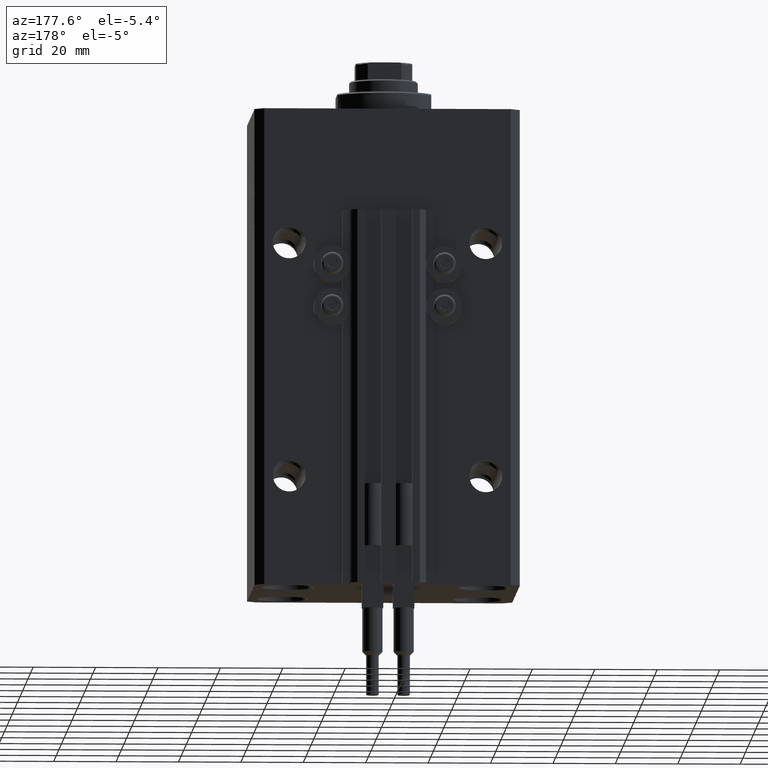
[diagram: clean part render]
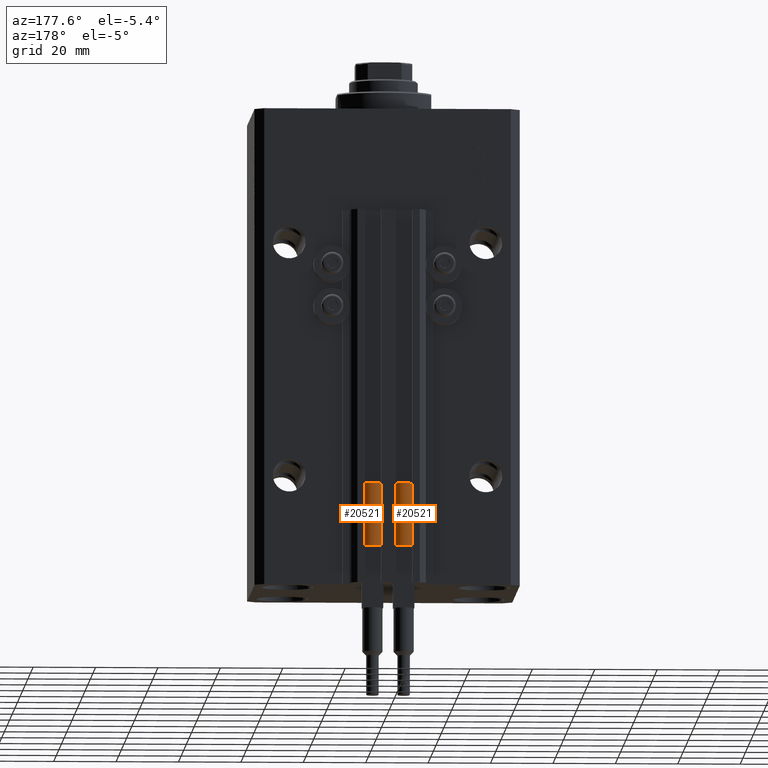
[diagram: same view with one multi-face feature highlighted, each face labeled with its STEP entity id]
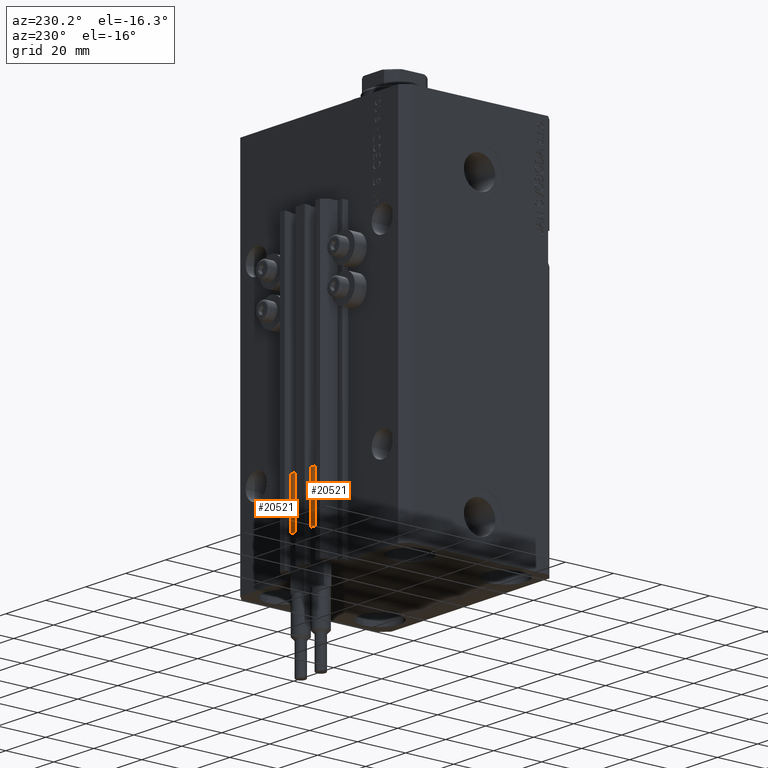
[diagram: same view with one multi-face feature highlighted, each face labeled with its STEP entity id]
A machine part, auxiliary view. The highlighted faces form ONE feature: a constant-radius fillet chain: 2 tangent blend faces with common blend radius 3.4 mm. The faces share edges in the B-rep.
A second angle (auxiliary view) of the same feature is appended — it is thin or edge-on in the first view.
Their STEP definitions:
[1] entity #20521 (Cylinder):
#8 = CARTESIAN_POINT ( 'NONE',  ( 0.000000000000000000, 0.000000000000000000, 20.00000000000000000 ) ) ;
#667 = CARTESIAN_POINT ( 'NONE',  ( 3.051229260478471428, 1.500000000000000000, 20.00000000000000000 ) ) ;
#1175 = CARTESIAN_POINT ( 'NONE',  ( 3.400000000000000355, 0.000000000000000000, 20.00000000000000000 ) ) ;
#1595 = DIRECTION ( 'NONE',  ( 1.000000000000000000, 0.000000000000000000, 0.000000000000000000 ) ) ;
#1793 = DIRECTION ( 'NONE',  ( 1.000000000000000000, 0.000000000000000000, 0.000000000000000000 ) ) ;
#1832 = VERTEX_POINT ( 'NONE', #3157 ) ;
#3157 = CARTESIAN_POINT ( 'NONE',  ( -3.051229260478471428, 1.500000000000000000, 20.00000000000000000 ) ) ;
#4691 = DIRECTION ( 'NONE',  ( 1.000000000000000000, 0.000000000000000000, 0.000000000000000000 ) ) ;
#5464 = DIRECTION ( 'NONE',  ( -0.000000000000000000, -0.000000000000000000, -1.000000000000000000 ) ) ;
#5550 = DIRECTION ( 'NONE',  ( 0.000000000000000000, 0.000000000000000000, 1.000000000000000000 ) ) ;
#6082 = VERTEX_POINT ( 'NONE', #667 ) ;
#6570 = EDGE_CURVE ( 'NONE', #6082, #1832, #45328, .T. ) ;
#9253 = EDGE_CURVE ( 'NONE', #24578, #30669, #28136, .T. ) ;
#11089 = CARTESIAN_POINT ( 'NONE',  ( 3.400000000000000355, 4.163799117101001052E-16, 0.000000000000000000 ) ) ;
#11307 = AXIS2_PLACEMENT_3D ( 'NONE', #35313, #16485, #46220 ) ;
#11602 = VERTEX_POINT ( 'NONE', #1175 ) ;
#12045 = ORIENTED_EDGE ( 'NONE', *, *, #6570, .F. ) ;
#12158 = EDGE_CURVE ( 'NONE', #1832, #24578, #16451, .T. ) ;
#15061 = DIRECTION ( 'NONE',  ( -1.000000000000000000, 0.000000000000000000, 0.000000000000000000 ) ) ;
#15388 = CIRCLE ( 'NONE', #34387, 3.400000000000000355 ) ;
#16207 = ORIENTED_EDGE ( 'NONE', *, *, #26424, .T. ) ;
#16451 = CIRCLE ( 'NONE', #26770, 3.400000000000000355 ) ;
#16485 = DIRECTION ( 'NONE',  ( 0.000000000000000000, 0.000000000000000000, 1.000000000000000000 ) ) ;
#16993 = DIRECTION ( 'NONE',  ( 0.000000000000000000, 0.000000000000000000, 1.000000000000000000 ) ) ;
#19016 = ORIENTED_EDGE ( 'NONE', *, *, #9253, .F. ) ;
#20521 = ADVANCED_FACE ( 'NONE', ( #45262 ), #33901, .T. ) ;
#21629 = AXIS2_PLACEMENT_3D ( 'NONE', #46724, #16993, #4691 ) ;
#21878 = CARTESIAN_POINT ( 'NONE',  ( -3.400000000000000355, 0.000000000000000000, 0.000000000000000000 ) ) ;
#24334 = CARTESIAN_POINT ( 'NONE',  ( 0.000000000000000000, 0.000000000000000000, 20.00000000000000000 ) ) ;
#24578 = VERTEX_POINT ( 'NONE', #32075 ) ;
#25031 = CARTESIAN_POINT ( 'NONE',  ( 0.000000000000000000, 0.000000000000000000, 20.00000000000000000 ) ) ;
#25449 = ORIENTED_EDGE ( 'NONE', *, *, #12158, .F. ) ;
#26424 = EDGE_CURVE ( 'NONE', #30481, #30669, #27906, .T. ) ;
#26770 = AXIS2_PLACEMENT_3D ( 'NONE', #25031, #43092, #1793 ) ;
#27696 = AXIS2_PLACEMENT_3D ( 'NONE', #8, #30173, #15061 ) ;
#27890 = EDGE_LOOP ( 'NONE', ( #31399, #46308, #16207, #19016, #25449, #12045 ) ) ;
#27906 = CIRCLE ( 'NONE', #11307, 3.400000000000000355 ) ;
#28136 = LINE ( 'NONE', #43231, #36815 ) ;
#28212 = LINE ( 'NONE', #39346, #43156 ) ;
#29782 = EDGE_CURVE ( 'NONE', #11602, #6082, #15388, .T. ) ;
#30173 = DIRECTION ( 'NONE',  ( -0.000000000000000000, -0.000000000000000000, -1.000000000000000000 ) ) ;
#30481 = VERTEX_POINT ( 'NONE', #11089 ) ;
#30669 = VERTEX_POINT ( 'NONE', #21878 ) ;
#31399 = ORIENTED_EDGE ( 'NONE', *, *, #29782, .F. ) ;
#32075 = CARTESIAN_POINT ( 'NONE',  ( -3.399999999999999467, -4.915049848600952119E-16, 20.00000000000000000 ) ) ;
#33901 = CYLINDRICAL_SURFACE ( 'NONE', #27696, 3.400000000000000355 ) ;
#34387 = AXIS2_PLACEMENT_3D ( 'NONE', #24334, #5550, #1595 ) ;
#35313 = CARTESIAN_POINT ( 'NONE',  ( 0.000000000000000000, 0.000000000000000000, 0.000000000000000000 ) ) ;
#36815 = VECTOR ( 'NONE', #37039, 1000.000000000000000 ) ;
#37039 = DIRECTION ( 'NONE',  ( -0.000000000000000000, -0.000000000000000000, -1.000000000000000000 ) ) ;
#39346 = CARTESIAN_POINT ( 'NONE',  ( 3.400000000000000355, 4.163799117101001052E-16, 20.00000000000000000 ) ) ;
#43092 = DIRECTION ( 'NONE',  ( 0.000000000000000000, 0.000000000000000000, 1.000000000000000000 ) ) ;
#43156 = VECTOR ( 'NONE', #5464, 1000.000000000000000 ) ;
#43231 = CARTESIAN_POINT ( 'NONE',  ( -3.400000000000000355, 0.000000000000000000, 20.00000000000000000 ) ) ;
#45262 = FACE_OUTER_BOUND ( 'NONE', #27890, .T. ) ;
#45328 = CIRCLE ( 'NONE', #21629, 3.400000000000000355 ) ;
#46220 = DIRECTION ( 'NONE',  ( 1.000000000000000000, 0.000000000000000000, 0.000000000000000000 ) ) ;
#46308 = ORIENTED_EDGE ( 'NONE', *, *, #46424, .T. ) ;
#46424 = EDGE_CURVE ( 'NONE', #11602, #30481, #28212, .T. ) ;
#46724 = CARTESIAN_POINT ( 'NONE',  ( 0.000000000000000000, 0.000000000000000000, 20.00000000000000000 ) ) ;
[2] entity #20521 (Cylinder):
#8 = CARTESIAN_POINT ( 'NONE',  ( 0.000000000000000000, 0.000000000000000000, 20.00000000000000000 ) ) ;
#667 = CARTESIAN_POINT ( 'NONE',  ( 3.051229260478471428, 1.500000000000000000, 20.00000000000000000 ) ) ;
#1175 = CARTESIAN_POINT ( 'NONE',  ( 3.400000000000000355, 0.000000000000000000, 20.00000000000000000 ) ) ;
#1595 = DIRECTION ( 'NONE',  ( 1.000000000000000000, 0.000000000000000000, 0.000000000000000000 ) ) ;
#1793 = DIRECTION ( 'NONE',  ( 1.000000000000000000, 0.000000000000000000, 0.000000000000000000 ) ) ;
#1832 = VERTEX_POINT ( 'NONE', #3157 ) ;
#3157 = CARTESIAN_POINT ( 'NONE',  ( -3.051229260478471428, 1.500000000000000000, 20.00000000000000000 ) ) ;
#4691 = DIRECTION ( 'NONE',  ( 1.000000000000000000, 0.000000000000000000, 0.000000000000000000 ) ) ;
#5464 = DIRECTION ( 'NONE',  ( -0.000000000000000000, -0.000000000000000000, -1.000000000000000000 ) ) ;
#5550 = DIRECTION ( 'NONE',  ( 0.000000000000000000, 0.000000000000000000, 1.000000000000000000 ) ) ;
#6082 = VERTEX_POINT ( 'NONE', #667 ) ;
#6570 = EDGE_CURVE ( 'NONE', #6082, #1832, #45328, .T. ) ;
#9253 = EDGE_CURVE ( 'NONE', #24578, #30669, #28136, .T. ) ;
#11089 = CARTESIAN_POINT ( 'NONE',  ( 3.400000000000000355, 4.163799117101001052E-16, 0.000000000000000000 ) ) ;
#11307 = AXIS2_PLACEMENT_3D ( 'NONE', #35313, #16485, #46220 ) ;
#11602 = VERTEX_POINT ( 'NONE', #1175 ) ;
#12045 = ORIENTED_EDGE ( 'NONE', *, *, #6570, .F. ) ;
#12158 = EDGE_CURVE ( 'NONE', #1832, #24578, #16451, .T. ) ;
#15061 = DIRECTION ( 'NONE',  ( -1.000000000000000000, 0.000000000000000000, 0.000000000000000000 ) ) ;
#15388 = CIRCLE ( 'NONE', #34387, 3.400000000000000355 ) ;
#16207 = ORIENTED_EDGE ( 'NONE', *, *, #26424, .T. ) ;
#16451 = CIRCLE ( 'NONE', #26770, 3.400000000000000355 ) ;
#16485 = DIRECTION ( 'NONE',  ( 0.000000000000000000, 0.000000000000000000, 1.000000000000000000 ) ) ;
#16993 = DIRECTION ( 'NONE',  ( 0.000000000000000000, 0.000000000000000000, 1.000000000000000000 ) ) ;
#19016 = ORIENTED_EDGE ( 'NONE', *, *, #9253, .F. ) ;
#20521 = ADVANCED_FACE ( 'NONE', ( #45262 ), #33901, .T. ) ;
#21629 = AXIS2_PLACEMENT_3D ( 'NONE', #46724, #16993, #4691 ) ;
#21878 = CARTESIAN_POINT ( 'NONE',  ( -3.400000000000000355, 0.000000000000000000, 0.000000000000000000 ) ) ;
#24334 = CARTESIAN_POINT ( 'NONE',  ( 0.000000000000000000, 0.000000000000000000, 20.00000000000000000 ) ) ;
#24578 = VERTEX_POINT ( 'NONE', #32075 ) ;
#25031 = CARTESIAN_POINT ( 'NONE',  ( 0.000000000000000000, 0.000000000000000000, 20.00000000000000000 ) ) ;
#25449 = ORIENTED_EDGE ( 'NONE', *, *, #12158, .F. ) ;
#26424 = EDGE_CURVE ( 'NONE', #30481, #30669, #27906, .T. ) ;
#26770 = AXIS2_PLACEMENT_3D ( 'NONE', #25031, #43092, #1793 ) ;
#27696 = AXIS2_PLACEMENT_3D ( 'NONE', #8, #30173, #15061 ) ;
#27890 = EDGE_LOOP ( 'NONE', ( #31399, #46308, #16207, #19016, #25449, #12045 ) ) ;
#27906 = CIRCLE ( 'NONE', #11307, 3.400000000000000355 ) ;
#28136 = LINE ( 'NONE', #43231, #36815 ) ;
#28212 = LINE ( 'NONE', #39346, #43156 ) ;
#29782 = EDGE_CURVE ( 'NONE', #11602, #6082, #15388, .T. ) ;
#30173 = DIRECTION ( 'NONE',  ( -0.000000000000000000, -0.000000000000000000, -1.000000000000000000 ) ) ;
#30481 = VERTEX_POINT ( 'NONE', #11089 ) ;
#30669 = VERTEX_POINT ( 'NONE', #21878 ) ;
#31399 = ORIENTED_EDGE ( 'NONE', *, *, #29782, .F. ) ;
#32075 = CARTESIAN_POINT ( 'NONE',  ( -3.399999999999999467, -4.915049848600952119E-16, 20.00000000000000000 ) ) ;
#33901 = CYLINDRICAL_SURFACE ( 'NONE', #27696, 3.400000000000000355 ) ;
#34387 = AXIS2_PLACEMENT_3D ( 'NONE', #24334, #5550, #1595 ) ;
#35313 = CARTESIAN_POINT ( 'NONE',  ( 0.000000000000000000, 0.000000000000000000, 0.000000000000000000 ) ) ;
#36815 = VECTOR ( 'NONE', #37039, 1000.000000000000000 ) ;
#37039 = DIRECTION ( 'NONE',  ( -0.000000000000000000, -0.000000000000000000, -1.000000000000000000 ) ) ;
#39346 = CARTESIAN_POINT ( 'NONE',  ( 3.400000000000000355, 4.163799117101001052E-16, 20.00000000000000000 ) ) ;
#43092 = DIRECTION ( 'NONE',  ( 0.000000000000000000, 0.000000000000000000, 1.000000000000000000 ) ) ;
#43156 = VECTOR ( 'NONE', #5464, 1000.000000000000000 ) ;
#43231 = CARTESIAN_POINT ( 'NONE',  ( -3.400000000000000355, 0.000000000000000000, 20.00000000000000000 ) ) ;
#45262 = FACE_OUTER_BOUND ( 'NONE', #27890, .T. ) ;
#45328 = CIRCLE ( 'NONE', #21629, 3.400000000000000355 ) ;
#46220 = DIRECTION ( 'NONE',  ( 1.000000000000000000, 0.000000000000000000, 0.000000000000000000 ) ) ;
#46308 = ORIENTED_EDGE ( 'NONE', *, *, #46424, .T. ) ;
#46424 = EDGE_CURVE ( 'NONE', #11602, #30481, #28212, .T. ) ;
#46724 = CARTESIAN_POINT ( 'NONE',  ( 0.000000000000000000, 0.000000000000000000, 20.00000000000000000 ) ) ;